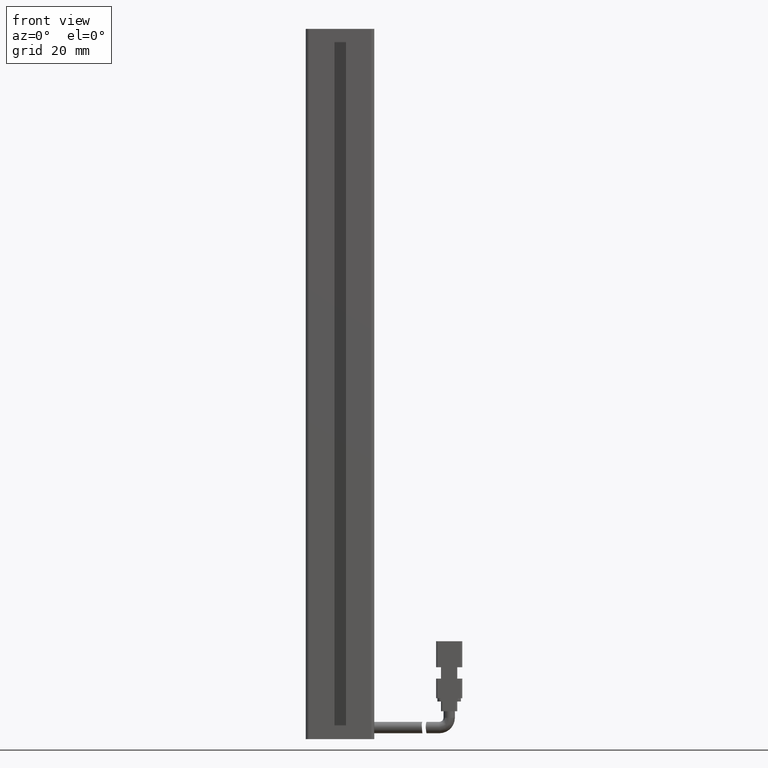
[diagram: clean part render]
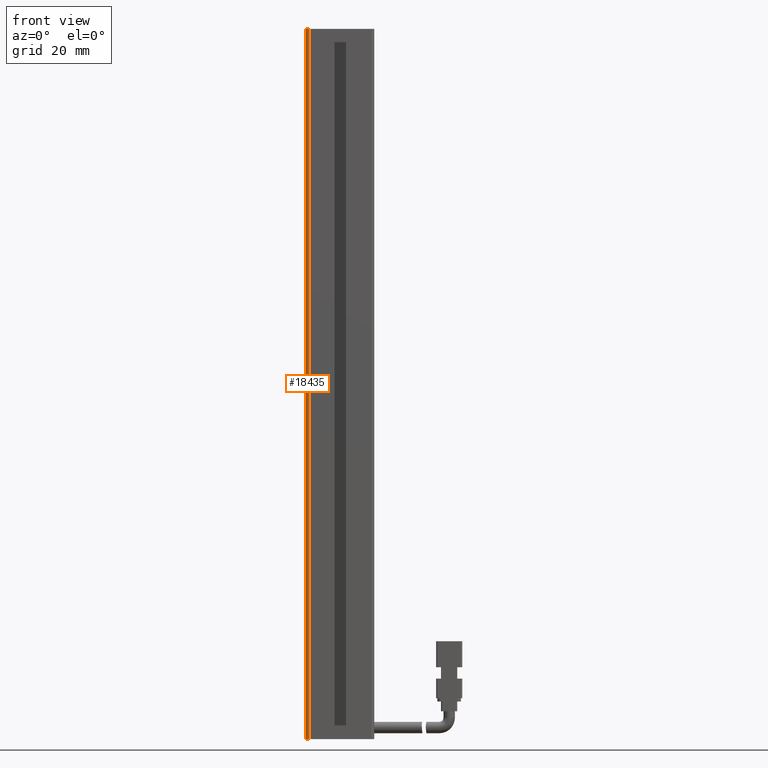
[diagram: same view with one face highlighted and labeled with its STEP entity id]
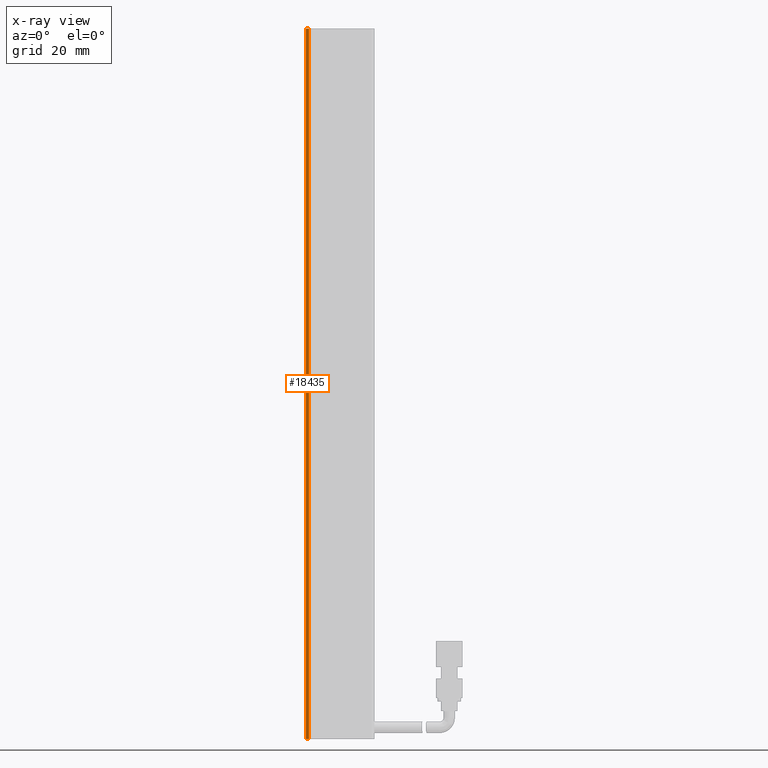
[diagram: x-ray of the same camera — body ghosted, the highlighted face saturated]
A machine part, front view. The second image highlights one B-rep face of the part: STEP entity #18435.
The next image is the same camera in x-ray: the body ghosted, the highlighted face saturated — about 0% of this face is hidden behind the body in this view.
In plain terms, the highlighted cylindrical surface (edge-blend (fillet) strip) has radius 1 mm, axis along (-0, -0, -1).
Its self-contained STEP definition (entity closure, byte-faithful):
#64 = CARTESIAN_POINT ( 'NONE',  ( 31.42537974683542900, 11.99073232304837000, -224.0000000000000000 ) ) ;
#1870 = CARTESIAN_POINT ( 'NONE',  ( 31.42537974683542900, 10.99073232304837000, -224.0000000000000000 ) ) ;
#2403 = CARTESIAN_POINT ( 'NONE',  ( 31.42537974683542900, 11.99073232304837000, -6.000000000000005300 ) ) ;
#3951 = CARTESIAN_POINT ( 'NONE',  ( 31.42537974683542900, 10.99073232304837000, -6.000000000000005300 ) ) ;
#5708 = DIRECTION ( 'NONE',  ( -1.000000000000000000, 0.0000000000000000000, 0.0000000000000000000 ) ) ;
#6183 = CARTESIAN_POINT ( 'NONE',  ( 31.42537974683542900, 10.99073232304837000, -6.000000000000005300 ) ) ;
#8572 = ORIENTED_EDGE ( 'NONE', *, *, #9473, .F. ) ;
#9473 = EDGE_CURVE ( 'NONE', #52769, #21800, #36599, .T. ) ;
#9821 = EDGE_LOOP ( 'NONE', ( #34601, #36560, #49921, #8572 ) ) ;
#10884 = EDGE_CURVE ( 'NONE', #13223, #23304, #33725, .T. ) ;
#12521 = DIRECTION ( 'NONE',  ( -1.000000000000000000, 0.0000000000000000000, 0.0000000000000000000 ) ) ;
#13210 = CYLINDRICAL_SURFACE ( 'NONE', #36202, 1.000000000000000900 ) ;
#13223 = VERTEX_POINT ( 'NONE', #37692 ) ;
#14509 = CARTESIAN_POINT ( 'NONE',  ( 31.42537974683542900, 11.99073232304837000, -6.000000000000005300 ) ) ;
#15509 = AXIS2_PLACEMENT_3D ( 'NONE', #64, #41568, #12521 ) ;
#18435 = ADVANCED_FACE ( 'NONE', ( #32974 ), #13210, .T. ) ;
#19642 = EDGE_CURVE ( 'NONE', #23304, #21800, #41873, .T. ) ;
#19758 = AXIS2_PLACEMENT_3D ( 'NONE', #14509, #47253, #5708 ) ;
#19992 = EDGE_CURVE ( 'NONE', #52769, #13223, #45096, .T. ) ;
#21800 = VERTEX_POINT ( 'NONE', #1870 ) ;
#23304 = VERTEX_POINT ( 'NONE', #52033 ) ;
#23394 = DIRECTION ( 'NONE',  ( -0.0000000000000000000, -0.0000000000000000000, -1.000000000000000000 ) ) ;
#32149 = DIRECTION ( 'NONE',  ( -0.0000000000000000000, -0.0000000000000000000, -1.000000000000000000 ) ) ;
#32974 = FACE_OUTER_BOUND ( 'NONE', #9821, .T. ) ;
#33351 = DIRECTION ( 'NONE',  ( 0.0000000000000000000, -0.0000000000000000000, -1.000000000000000000 ) ) ;
#33725 = LINE ( 'NONE', #52820, #50803 ) ;
#34601 = ORIENTED_EDGE ( 'NONE', *, *, #19992, .T. ) ;
#36202 = AXIS2_PLACEMENT_3D ( 'NONE', #2403, #32149, #36211 ) ;
#36211 = DIRECTION ( 'NONE',  ( -1.000000000000000000, 0.0000000000000000000, 0.0000000000000000000 ) ) ;
#36560 = ORIENTED_EDGE ( 'NONE', *, *, #10884, .T. ) ;
#36599 = LINE ( 'NONE', #3951, #44548 ) ;
#37692 = CARTESIAN_POINT ( 'NONE',  ( 30.42537974683542500, 11.99073232304837000, -6.000000000000005300 ) ) ;
#41568 = DIRECTION ( 'NONE',  ( 0.0000000000000000000, 0.0000000000000000000, 1.000000000000000000 ) ) ;
#41873 = CIRCLE ( 'NONE', #15509, 1.000000000000000900 ) ;
#44548 = VECTOR ( 'NONE', #33351, 1000.000000000000000 ) ;
#45096 = CIRCLE ( 'NONE', #19758, 1.000000000000000900 ) ;
#47253 = DIRECTION ( 'NONE',  ( -0.0000000000000000000, -0.0000000000000000000, -1.000000000000000000 ) ) ;
#49921 = ORIENTED_EDGE ( 'NONE', *, *, #19642, .T. ) ;
#50803 = VECTOR ( 'NONE', #23394, 1000.000000000000000 ) ;
#52033 = CARTESIAN_POINT ( 'NONE',  ( 30.42537974683542500, 11.99073232304837000, -224.0000000000000000 ) ) ;
#52769 = VERTEX_POINT ( 'NONE', #6183 ) ;
#52820 = CARTESIAN_POINT ( 'NONE',  ( 30.42537974683542500, 11.99073232304837000, -6.000000000000005300 ) ) ;